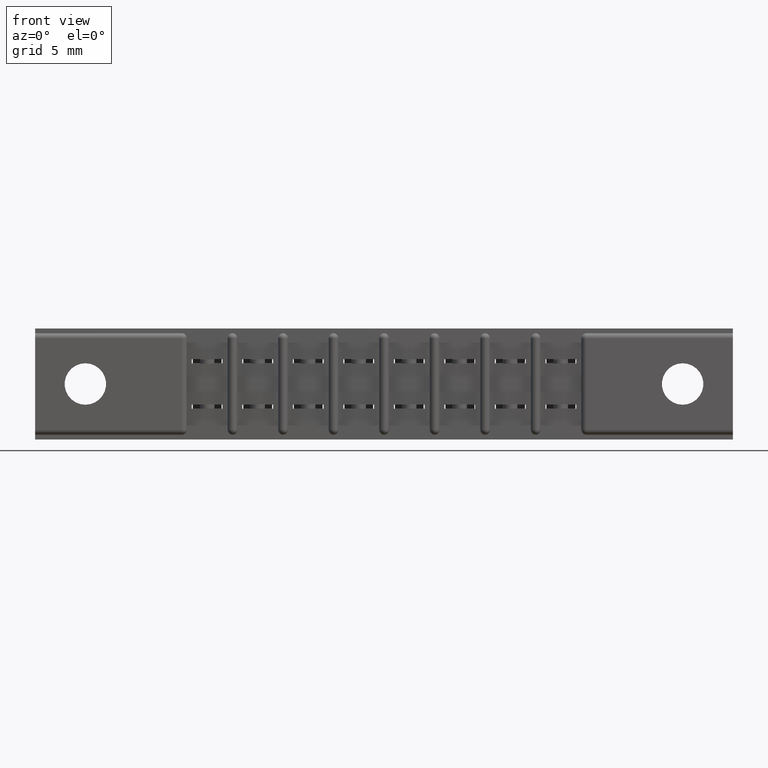
[diagram: clean part render]
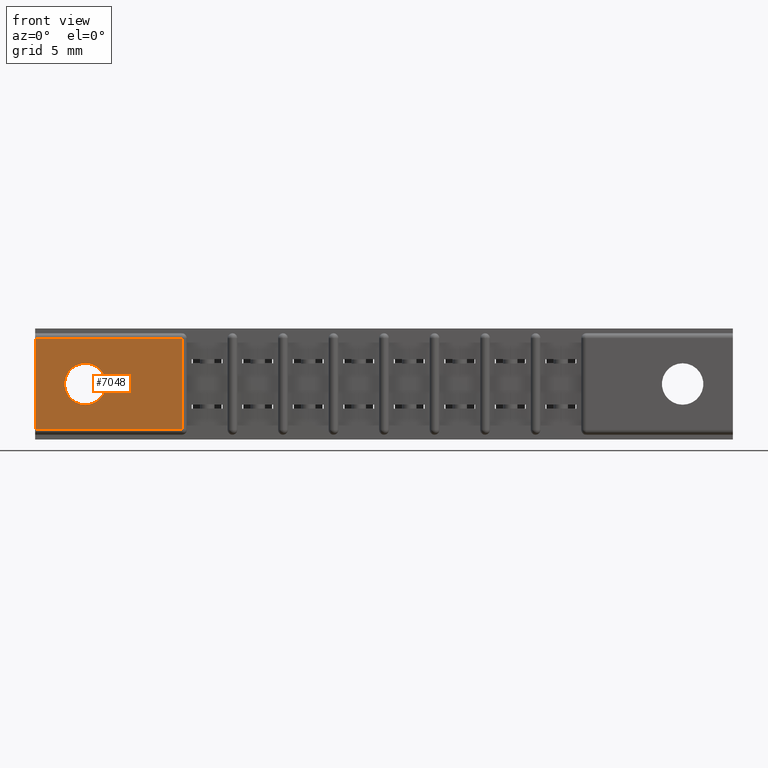
[diagram: same view with one face highlighted and labeled with its STEP entity id]
A machine part, front view. The second image highlights one B-rep face of the part: STEP entity #7048.
In plain terms, the highlighted planar face has unit normal (0, -1, 0).
Its self-contained STEP definition (entity closure, byte-faithful):
#116 = CARTESIAN_POINT ( 'NONE',  ( 0.4530000000000006200, 0.0000000000000000000, -0.3130000000000000600 ) ) ;
#330 = DIRECTION ( 'NONE',  ( 0.0000000000000000000, 0.0000000000000000000, -1.000000000000000000 ) ) ;
#446 = CARTESIAN_POINT ( 'NONE',  ( 0.1549999999999998600, 0.0000000000000000000, -0.1715000000000000100 ) ) ;
#786 = EDGE_CURVE ( 'NONE', #12433, #7130, #11250, .T. ) ;
#927 = EDGE_CURVE ( 'NONE', #7130, #12433, #8925, .T. ) ;
#1155 = CARTESIAN_POINT ( 'NONE',  ( 0.0000000000000000000, 0.0000000000000000000, -0.3130000000000000600 ) ) ;
#1326 = VECTOR ( 'NONE', #5851, 39.37007874015748100 ) ;
#1340 = CARTESIAN_POINT ( 'NONE',  ( 0.1549999999999998600, 0.0000000000000000000, -0.1715000000000000100 ) ) ;
#1720 = VECTOR ( 'NONE', #10954, 39.37007874015748100 ) ;
#2323 = EDGE_CURVE ( 'NONE', #2774, #9492, #9989, .T. ) ;
#2657 = PLANE ( 'NONE',  #3422 ) ;
#2774 = VERTEX_POINT ( 'NONE', #116 ) ;
#3422 = AXIS2_PLACEMENT_3D ( 'NONE', #8411, #10360, #4470 ) ;
#3587 = VERTEX_POINT ( 'NONE', #6187 ) ;
#4470 = DIRECTION ( 'NONE',  ( 0.0000000000000000000, -0.0000000000000000000, -1.000000000000000000 ) ) ;
#4938 = CARTESIAN_POINT ( 'NONE',  ( 0.0000000000000000000, 0.0000000000000000000, 0.0000000000000000000 ) ) ;
#5731 = DIRECTION ( 'NONE',  ( 6.030569522437654900E-016, -0.0000000000000000000, 1.000000000000000000 ) ) ;
#5749 = EDGE_CURVE ( 'NONE', #10272, #2774, #12146, .T. ) ;
#5851 = DIRECTION ( 'NONE',  ( -0.0000000000000000000, -0.0000000000000000000, 1.000000000000000000 ) ) ;
#5912 = EDGE_CURVE ( 'NONE', #9492, #3587, #8939, .T. ) ;
#6142 = CARTESIAN_POINT ( 'NONE',  ( 0.1549999999999998600, 0.0000000000000000000, -0.2354999999999999900 ) ) ;
#6187 = CARTESIAN_POINT ( 'NONE',  ( 0.0000000000000000000, 0.0000000000000000000, -0.02999999999999995400 ) ) ;
#7048 = ADVANCED_FACE ( 'NONE', ( #11455, #7501 ), #2657, .T. ) ;
#7130 = VERTEX_POINT ( 'NONE', #11730 ) ;
#7463 = ORIENTED_EDGE ( 'NONE', *, *, #5912, .T. ) ;
#7501 = FACE_OUTER_BOUND ( 'NONE', #10532, .T. ) ;
#7780 = EDGE_LOOP ( 'NONE', ( #8177, #10309 ) ) ;
#7866 = VECTOR ( 'NONE', #5731, 39.37007874015748100 ) ;
#8177 = ORIENTED_EDGE ( 'NONE', *, *, #786, .F. ) ;
#8326 = DIRECTION ( 'NONE',  ( 0.0000000000000000000, 0.0000000000000000000, -1.000000000000000000 ) ) ;
#8411 = CARTESIAN_POINT ( 'NONE',  ( 0.0000000000000000000, 0.0000000000000000000, -0.3430000000000000300 ) ) ;
#8520 = EDGE_CURVE ( 'NONE', #10272, #3587, #12513, .T. ) ;
#8925 = CIRCLE ( 'NONE', #10720, 0.06399999999999998700 ) ;
#8939 = LINE ( 'NONE', #11764, #1720 ) ;
#8949 = CARTESIAN_POINT ( 'NONE',  ( 2.153999999999999900, 0.0000000000000000000, -0.3130000000000000600 ) ) ;
#9376 = ORIENTED_EDGE ( 'NONE', *, *, #2323, .T. ) ;
#9492 = VERTEX_POINT ( 'NONE', #11336 ) ;
#9989 = LINE ( 'NONE', #12351, #7866 ) ;
#10234 = DIRECTION ( 'NONE',  ( 0.0000000000000000000, -1.000000000000000000, 0.0000000000000000000 ) ) ;
#10272 = VERTEX_POINT ( 'NONE', #1155 ) ;
#10309 = ORIENTED_EDGE ( 'NONE', *, *, #927, .F. ) ;
#10360 = DIRECTION ( 'NONE',  ( 0.0000000000000000000, -1.000000000000000000, 0.0000000000000000000 ) ) ;
#10532 = EDGE_LOOP ( 'NONE', ( #10635, #9376, #7463, #12305 ) ) ;
#10538 = AXIS2_PLACEMENT_3D ( 'NONE', #446, #10234, #8326 ) ;
#10635 = ORIENTED_EDGE ( 'NONE', *, *, #5749, .T. ) ;
#10720 = AXIS2_PLACEMENT_3D ( 'NONE', #1340, #12132, #330 ) ;
#10822 = VECTOR ( 'NONE', #10902, 39.37007874015748100 ) ;
#10902 = DIRECTION ( 'NONE',  ( 1.000000000000000000, -0.0000000000000000000, -0.0000000000000000000 ) ) ;
#10954 = DIRECTION ( 'NONE',  ( -1.000000000000000000, 0.0000000000000000000, 0.0000000000000000000 ) ) ;
#11250 = CIRCLE ( 'NONE', #10538, 0.06399999999999998700 ) ;
#11336 = CARTESIAN_POINT ( 'NONE',  ( 0.4530000000000006800, 0.0000000000000000000, -0.02999999999999995400 ) ) ;
#11455 = FACE_BOUND ( 'NONE', #7780, .T. ) ;
#11730 = CARTESIAN_POINT ( 'NONE',  ( 0.1549999999999998600, 0.0000000000000000000, -0.1075000000000000100 ) ) ;
#11764 = CARTESIAN_POINT ( 'NONE',  ( 0.0000000000000000000, 0.0000000000000000000, -0.02999999999999995400 ) ) ;
#12132 = DIRECTION ( 'NONE',  ( 0.0000000000000000000, -1.000000000000000000, 0.0000000000000000000 ) ) ;
#12146 = LINE ( 'NONE', #8949, #10822 ) ;
#12305 = ORIENTED_EDGE ( 'NONE', *, *, #8520, .F. ) ;
#12351 = CARTESIAN_POINT ( 'NONE',  ( 0.4530000000000006800, 0.0000000000000000000, -0.02999999999999995400 ) ) ;
#12433 = VERTEX_POINT ( 'NONE', #6142 ) ;
#12513 = LINE ( 'NONE', #4938, #1326 ) ;